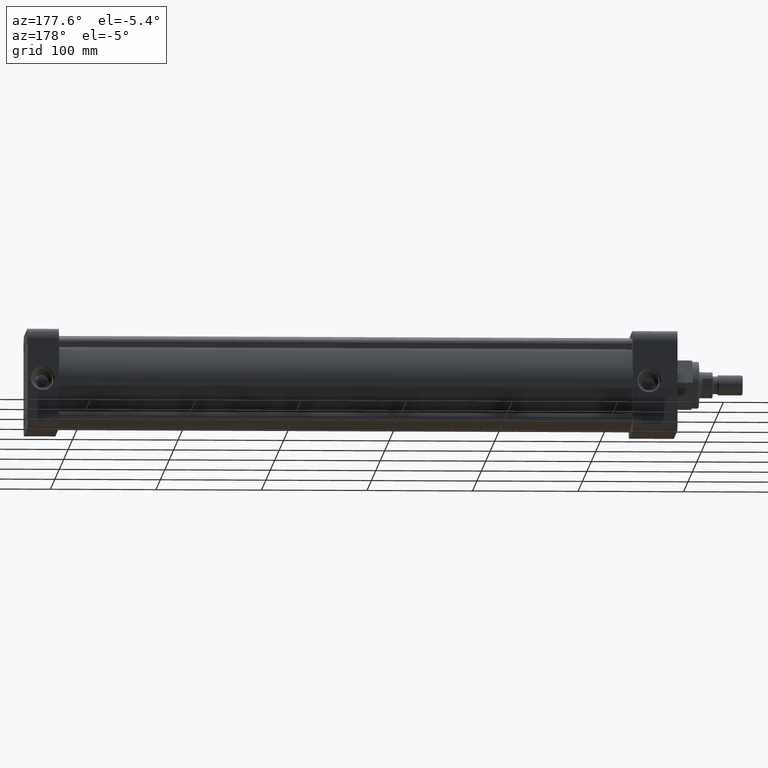
[diagram: clean part render]
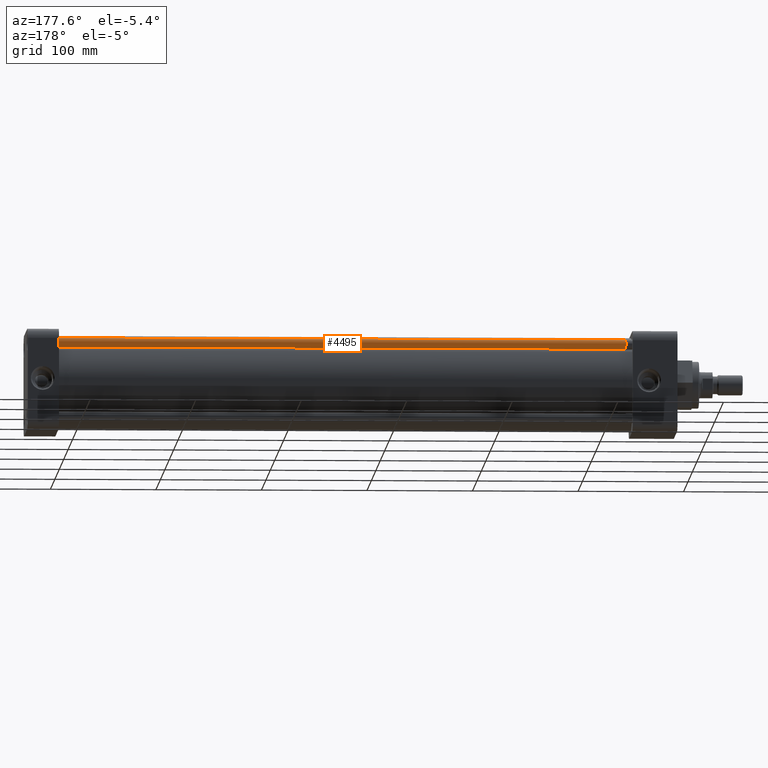
[diagram: same view with one face highlighted and labeled with its STEP entity id]
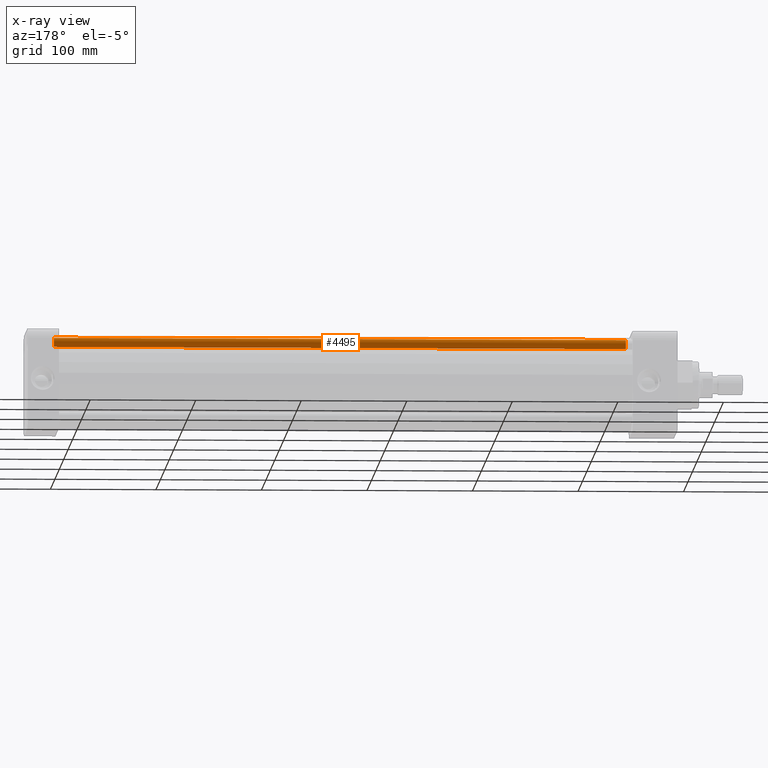
[diagram: x-ray of the same camera — body ghosted, the highlighted face saturated]
A machine part, auxiliary view. The second image highlights one B-rep face of the part: STEP entity #4495.
The next image is the same camera in x-ray: the body ghosted, the highlighted face saturated — about 0% of this face is hidden behind the body in this view.
In plain terms, the highlighted cylindrical surface (edge-blend (fillet) strip) has radius 4.318 mm, axis along (-1, 0, 0).
Its self-contained STEP definition (entity closure, byte-faithful):
#1009 = VERTEX_POINT ( 'NONE', #8437 ) ;
#1509 = CARTESIAN_POINT ( 'NONE',  ( 23.25600000000000000, 1.379000000000000000, 1.209000000000000100 ) ) ;
#1731 = AXIS2_PLACEMENT_3D ( 'NONE', #13001, #6191, #14147 ) ;
#2018 = CIRCLE ( 'NONE', #1731, 0.1699999999999999600 ) ;
#2264 = DIRECTION ( 'NONE',  ( -1.000000000000000000, 0.0000000000000000000, -0.0000000000000000000 ) ) ;
#2310 = ORIENTED_EDGE ( 'NONE', *, *, #2819, .F. ) ;
#2819 = EDGE_CURVE ( 'NONE', #1009, #9555, #12275, .T. ) ;
#3759 = DIRECTION ( 'NONE',  ( -1.000000000000000000, 0.0000000000000000000, -0.0000000000000000000 ) ) ;
#3791 = VERTEX_POINT ( 'NONE', #12256 ) ;
#4495 = ADVANCED_FACE ( 'NONE', ( #7205 ), #8809, .T. ) ;
#5776 = CARTESIAN_POINT ( 'NONE',  ( 23.25600000000000000, 1.379000000000000000, 1.549000000000000200 ) ) ;
#6191 = DIRECTION ( 'NONE',  ( 1.000000000000000000, -0.0000000000000000000, 0.0000000000000000000 ) ) ;
#6230 = VECTOR ( 'NONE', #12619, 39.37007874015748100 ) ;
#6306 = AXIS2_PLACEMENT_3D ( 'NONE', #9056, #2264, #10172 ) ;
#6680 = VERTEX_POINT ( 'NONE', #8964 ) ;
#7006 = ORIENTED_EDGE ( 'NONE', *, *, #14403, .T. ) ;
#7007 = VECTOR ( 'NONE', #3759, 39.37007874015748100 ) ;
#7205 = FACE_OUTER_BOUND ( 'NONE', #13696, .T. ) ;
#7385 = LINE ( 'NONE', #1509, #7007 ) ;
#8090 = CIRCLE ( 'NONE', #6306, 0.1699999999999999600 ) ;
#8437 = CARTESIAN_POINT ( 'NONE',  ( 23.25600000000000000, 1.379000000000000000, 1.549000000000000200 ) ) ;
#8752 = CARTESIAN_POINT ( 'NONE',  ( 1.913000000000002000, 1.379000000000000000, 1.549000000000000200 ) ) ;
#8809 = CYLINDRICAL_SURFACE ( 'NONE', #9381, 0.1699999999999999600 ) ;
#8964 = CARTESIAN_POINT ( 'NONE',  ( 23.25600000000000000, 1.379000000000000000, 1.209000000000000100 ) ) ;
#9056 = CARTESIAN_POINT ( 'NONE',  ( 23.25600000000000000, 1.379000000000000000, 1.379000000000000000 ) ) ;
#9381 = AXIS2_PLACEMENT_3D ( 'NONE', #10896, #9711, #9806 ) ;
#9555 = VERTEX_POINT ( 'NONE', #8752 ) ;
#9711 = DIRECTION ( 'NONE',  ( -1.000000000000000000, 0.0000000000000000000, -0.0000000000000000000 ) ) ;
#9713 = ORIENTED_EDGE ( 'NONE', *, *, #12128, .T. ) ;
#9806 = DIRECTION ( 'NONE',  ( 0.0000000000000000000, 0.0000000000000000000, -1.000000000000000000 ) ) ;
#10172 = DIRECTION ( 'NONE',  ( 0.0000000000000000000, 0.0000000000000000000, -1.000000000000000000 ) ) ;
#10578 = ORIENTED_EDGE ( 'NONE', *, *, #14040, .T. ) ;
#10896 = CARTESIAN_POINT ( 'NONE',  ( 23.25600000000000000, 1.379000000000000000, 1.379000000000000000 ) ) ;
#12128 = EDGE_CURVE ( 'NONE', #3791, #9555, #2018, .T. ) ;
#12256 = CARTESIAN_POINT ( 'NONE',  ( 1.913000000000002000, 1.379000000000000000, 1.209000000000000100 ) ) ;
#12275 = LINE ( 'NONE', #5776, #6230 ) ;
#12619 = DIRECTION ( 'NONE',  ( -1.000000000000000000, 0.0000000000000000000, -0.0000000000000000000 ) ) ;
#13001 = CARTESIAN_POINT ( 'NONE',  ( 1.913000000000002000, 1.379000000000000000, 1.379000000000000000 ) ) ;
#13696 = EDGE_LOOP ( 'NONE', ( #2310, #7006, #10578, #9713 ) ) ;
#14040 = EDGE_CURVE ( 'NONE', #6680, #3791, #7385, .T. ) ;
#14147 = DIRECTION ( 'NONE',  ( 0.0000000000000000000, 0.0000000000000000000, -1.000000000000000000 ) ) ;
#14403 = EDGE_CURVE ( 'NONE', #1009, #6680, #8090, .T. ) ;